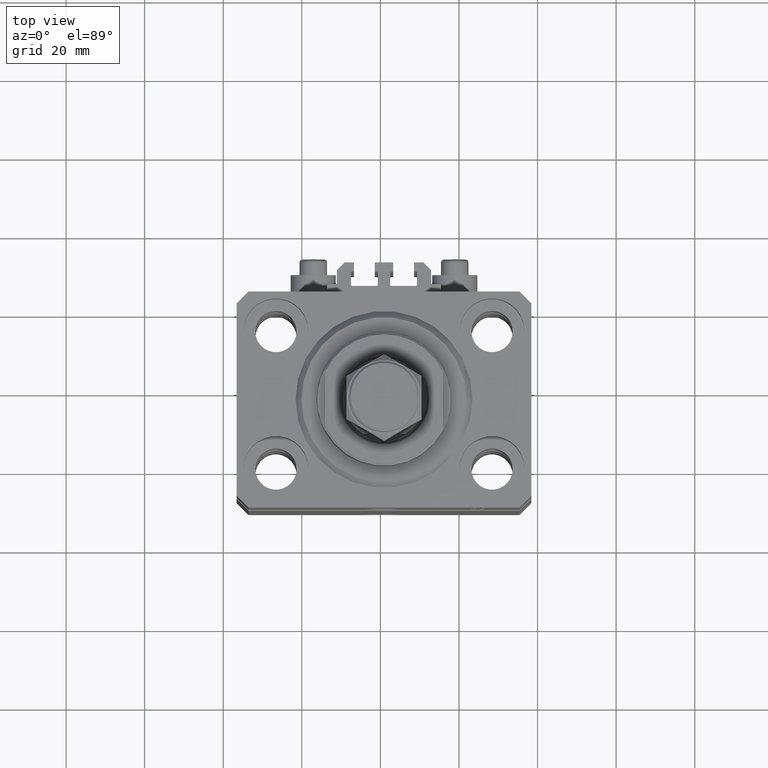
[diagram: clean part render]
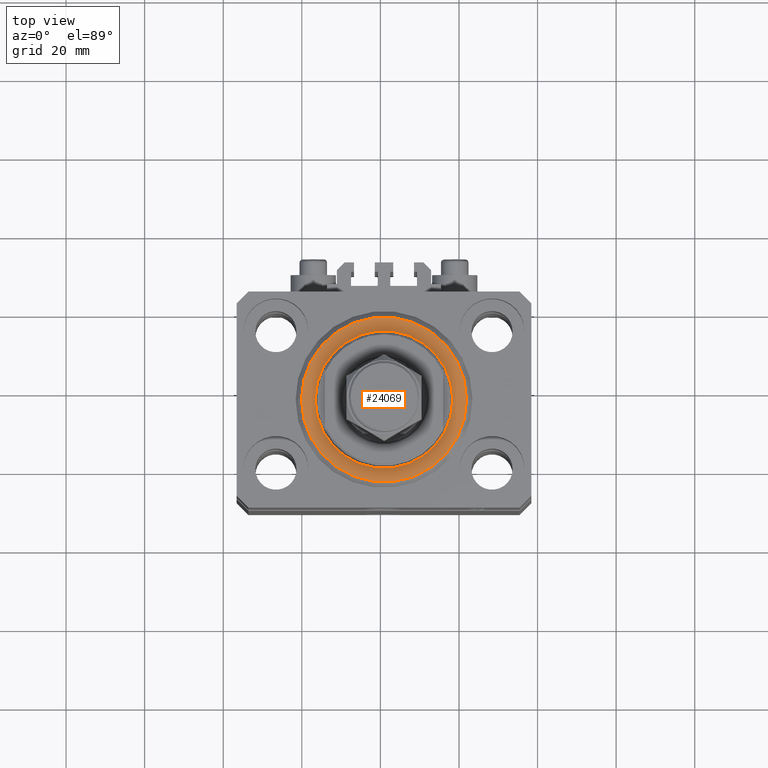
[diagram: same view with one face highlighted and labeled with its STEP entity id]
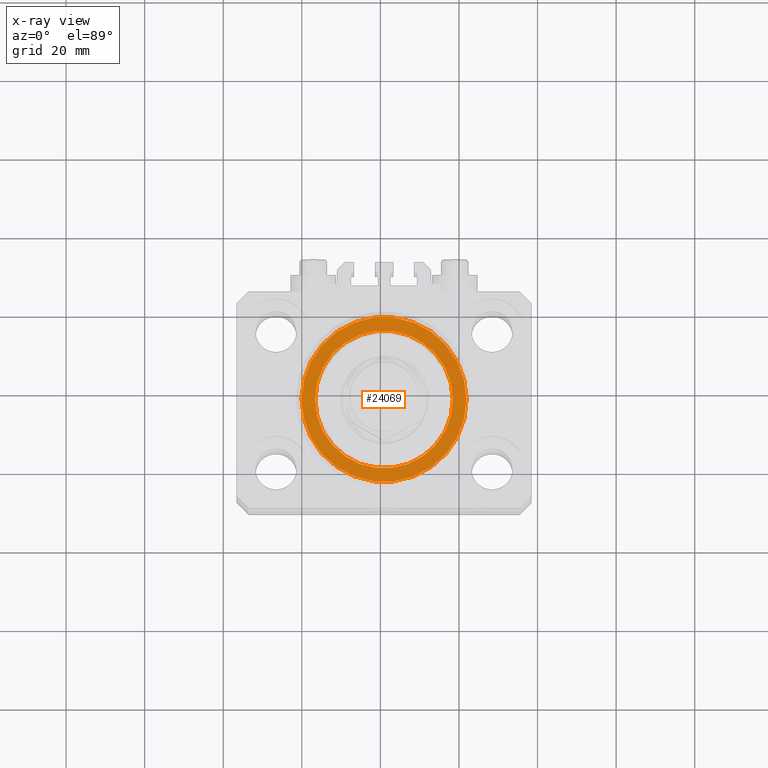
[diagram: x-ray of the same camera — body ghosted, the highlighted face saturated]
A machine part, top view. The second image highlights one B-rep face of the part: STEP entity #24069.
The next image is the same camera in x-ray: the body ghosted, the highlighted face saturated — about 0% of this face is hidden behind the body in this view.
In plain terms, the highlighted planar face has unit normal (0, 0, -1).
Its self-contained STEP definition (entity closure, byte-faithful):
#2741 = EDGE_CURVE ( 'NONE', #37879, #19393, #3766, .T. ) ;
#3766 = CIRCLE ( 'NONE', #23331, 20.99999999999995381 ) ;
#4304 = VERTEX_POINT ( 'NONE', #47562 ) ;
#5881 = ORIENTED_EDGE ( 'NONE', *, *, #46350, .T. ) ;
#6372 = DIRECTION ( 'NONE',  ( -0.000000000000000000, -0.000000000000000000, -1.000000000000000000 ) ) ;
#7634 = FACE_BOUND ( 'NONE', #46986, .T. ) ;
#9058 = EDGE_LOOP ( 'NONE', ( #5881, #46091 ) ) ;
#9221 = EDGE_CURVE ( 'NONE', #4304, #15005, #15051, .T. ) ;
#10190 = CARTESIAN_POINT ( 'NONE',  ( -17.50000000000000000, 2.143131898507868643E-15, -2.168404344971008868E-16 ) ) ;
#11314 = PLANE ( 'NONE',  #27834 ) ;
#11585 = AXIS2_PLACEMENT_3D ( 'NONE', #25504, #6372, #40436 ) ;
#11606 = ORIENTED_EDGE ( 'NONE', *, *, #9221, .T. ) ;
#11665 = CIRCLE ( 'NONE', #29651, 17.50000000000000000 ) ;
#12888 = CARTESIAN_POINT ( 'NONE',  ( 0.000000000000000000, 0.000000000000000000, 0.000000000000000000 ) ) ;
#13379 = DIRECTION ( 'NONE',  ( -0.000000000000000000, -0.000000000000000000, -1.000000000000000000 ) ) ;
#15005 = VERTEX_POINT ( 'NONE', #10190 ) ;
#15051 = CIRCLE ( 'NONE', #38408, 17.50000000000000000 ) ;
#18683 = CARTESIAN_POINT ( 'NONE',  ( 0.000000000000000000, 0.000000000000000000, 0.000000000000000000 ) ) ;
#19393 = VERTEX_POINT ( 'NONE', #32428 ) ;
#22130 = DIRECTION ( 'NONE',  ( 1.000000000000000000, 0.000000000000000000, -0.000000000000000000 ) ) ;
#23331 = AXIS2_PLACEMENT_3D ( 'NONE', #12888, #13379, #24178 ) ;
#24069 = ADVANCED_FACE ( 'NONE', ( #7634, #37552 ), #11314, .F. ) ;
#24100 = DIRECTION ( 'NONE',  ( 0.000000000000000000, 0.000000000000000000, 1.000000000000000000 ) ) ;
#24178 = DIRECTION ( 'NONE',  ( 1.000000000000000000, 0.000000000000000000, 0.000000000000000000 ) ) ;
#25504 = CARTESIAN_POINT ( 'NONE',  ( 0.000000000000000000, 0.000000000000000000, 0.000000000000000000 ) ) ;
#27394 = CARTESIAN_POINT ( 'NONE',  ( 0.000000000000000000, 0.000000000000000000, 0.000000000000000000 ) ) ;
#27766 = DIRECTION ( 'NONE',  ( 1.000000000000000000, 0.000000000000000000, 0.000000000000000000 ) ) ;
#27834 = AXIS2_PLACEMENT_3D ( 'NONE', #18683, #29954, #22130 ) ;
#29651 = AXIS2_PLACEMENT_3D ( 'NONE', #27394, #35950, #31551 ) ;
#29954 = DIRECTION ( 'NONE',  ( 0.000000000000000000, 0.000000000000000000, 1.000000000000000000 ) ) ;
#30858 = ORIENTED_EDGE ( 'NONE', *, *, #44511, .T. ) ;
#31551 = DIRECTION ( 'NONE',  ( 1.000000000000000000, 0.000000000000000000, 0.000000000000000000 ) ) ;
#31733 = CARTESIAN_POINT ( 'NONE',  ( -20.99999999999995381, 2.663606788145490261E-15, 0.000000000000000000 ) ) ;
#32428 = CARTESIAN_POINT ( 'NONE',  ( 20.99999999999995381, 0.000000000000000000, 0.000000000000000000 ) ) ;
#35950 = DIRECTION ( 'NONE',  ( 0.000000000000000000, 0.000000000000000000, 1.000000000000000000 ) ) ;
#37552 = FACE_OUTER_BOUND ( 'NONE', #9058, .T. ) ;
#37879 = VERTEX_POINT ( 'NONE', #31733 ) ;
#38408 = AXIS2_PLACEMENT_3D ( 'NONE', #41982, #24100, #27766 ) ;
#40436 = DIRECTION ( 'NONE',  ( 1.000000000000000000, 0.000000000000000000, 0.000000000000000000 ) ) ;
#41982 = CARTESIAN_POINT ( 'NONE',  ( 0.000000000000000000, 0.000000000000000000, 0.000000000000000000 ) ) ;
#44511 = EDGE_CURVE ( 'NONE', #15005, #4304, #11665, .T. ) ;
#44535 = CIRCLE ( 'NONE', #11585, 20.99999999999995381 ) ;
#46091 = ORIENTED_EDGE ( 'NONE', *, *, #2741, .T. ) ;
#46350 = EDGE_CURVE ( 'NONE', #19393, #37879, #44535, .T. ) ;
#46986 = EDGE_LOOP ( 'NONE', ( #11606, #30858 ) ) ;
#47562 = CARTESIAN_POINT ( 'NONE',  ( 17.50000000000000000, 0.000000000000000000, -2.168404344971008868E-16 ) ) ;